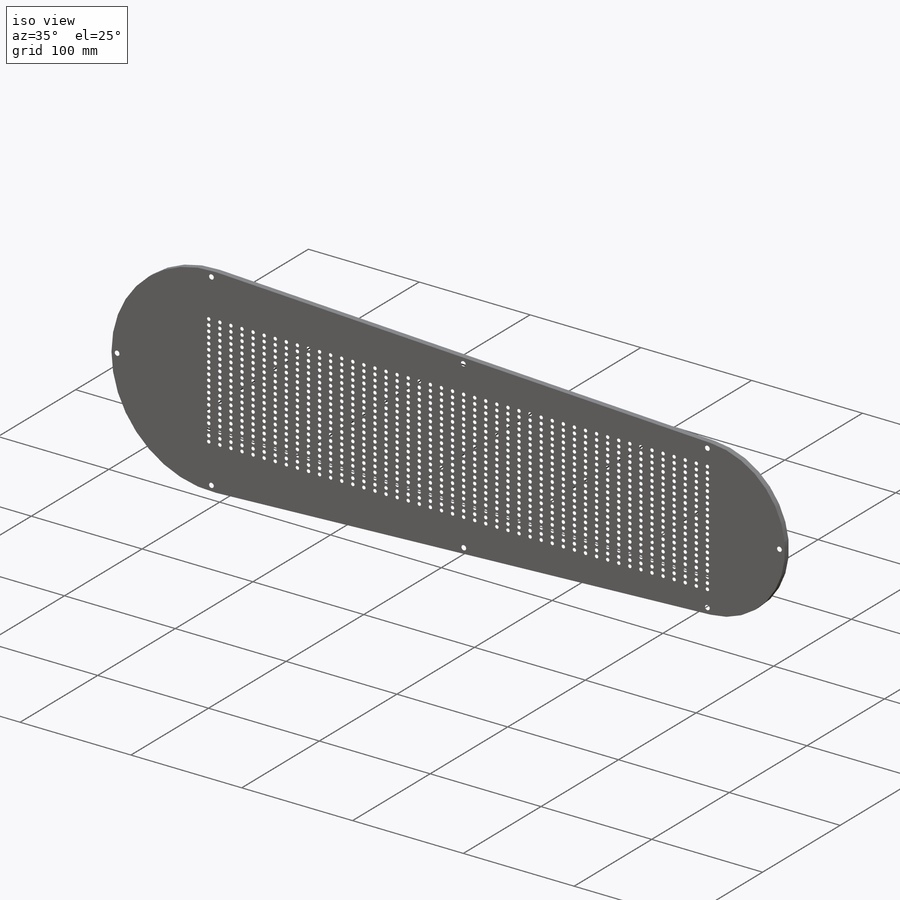
[diagram: iso view]
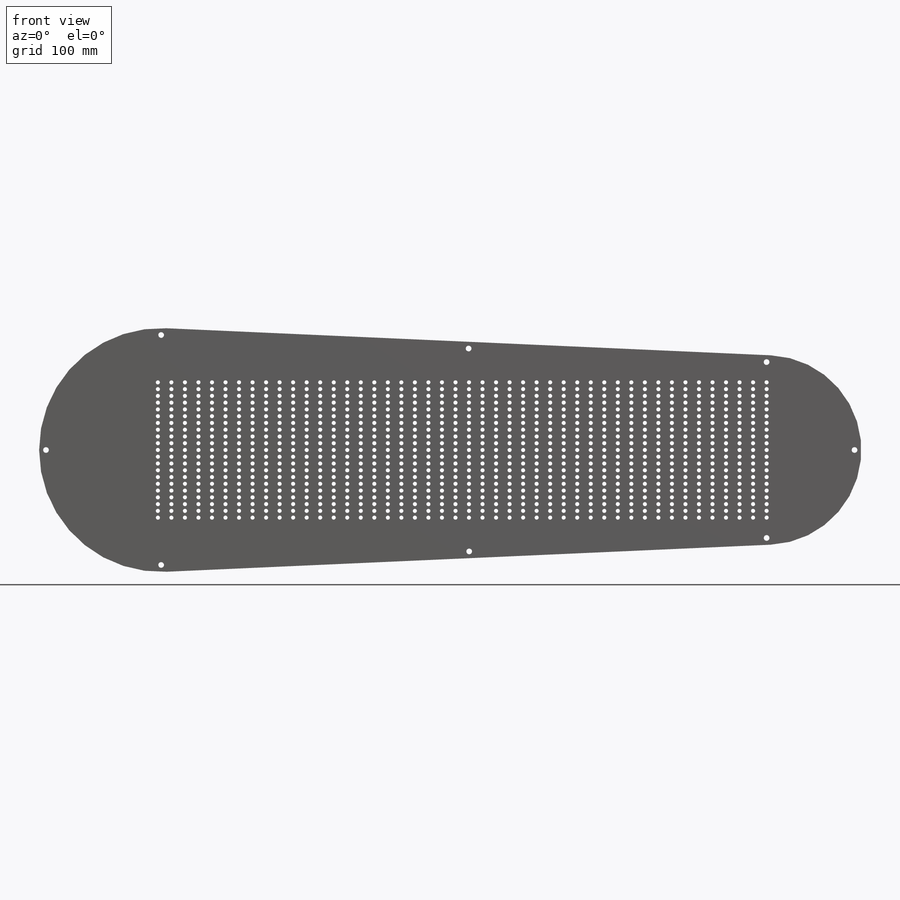
[diagram: front view]
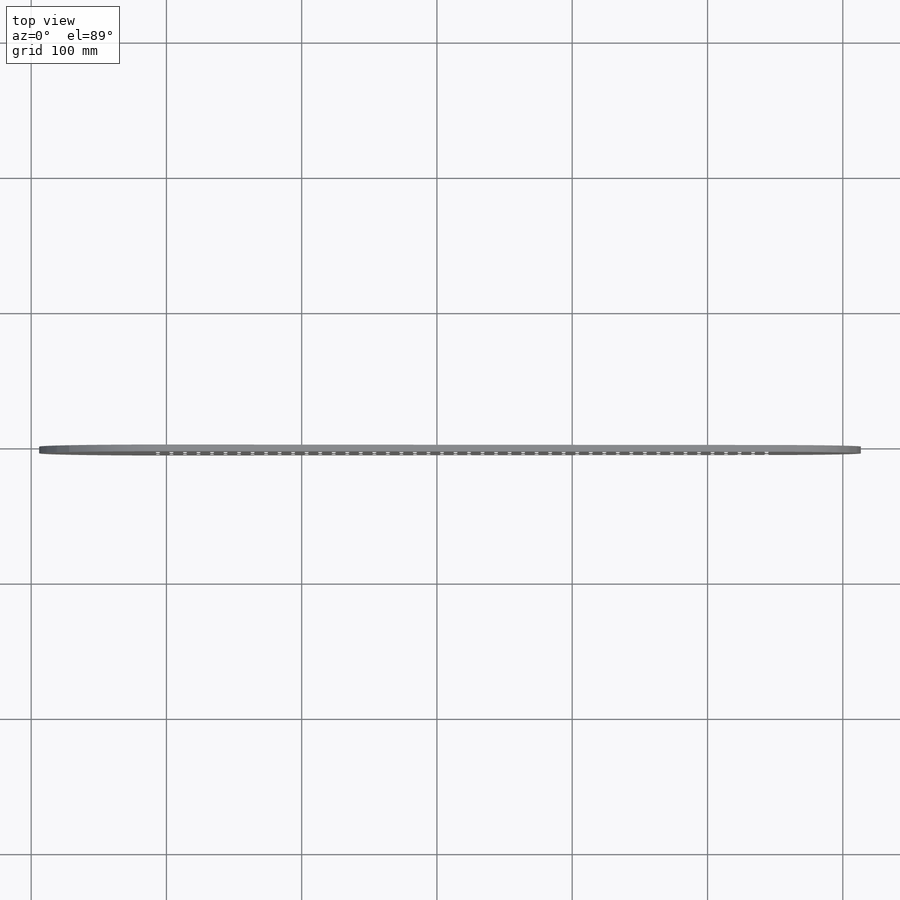
[diagram: top view]
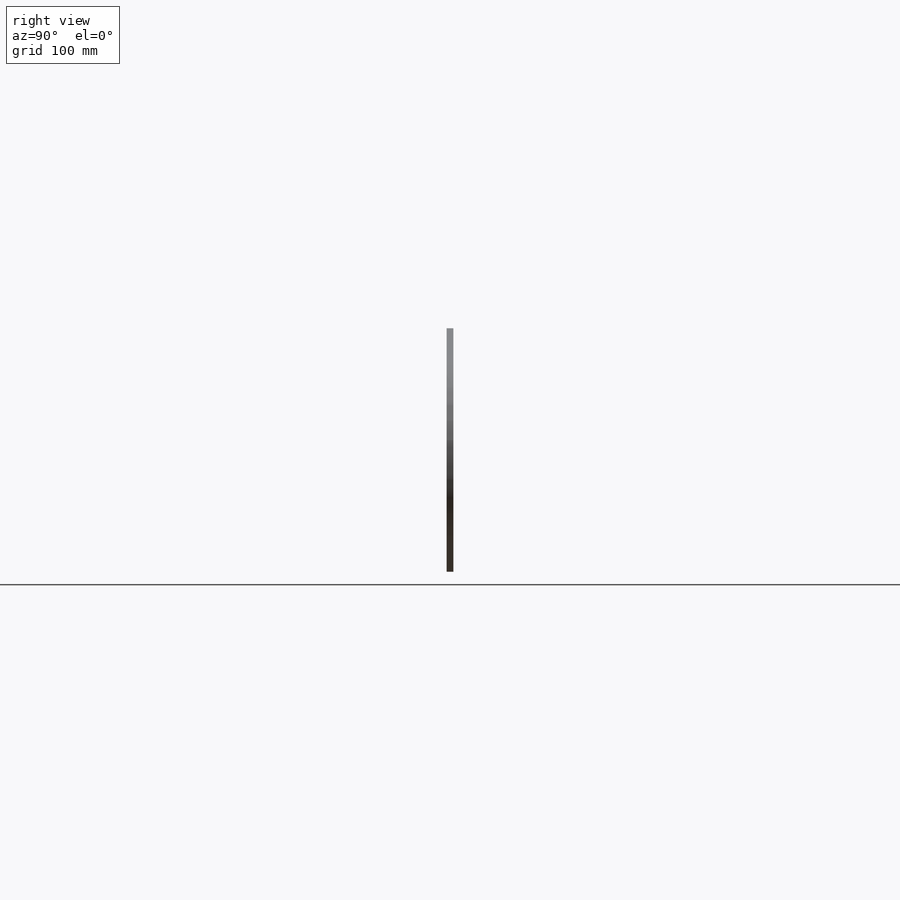
[diagram: right view]
SOLIDWORKS PART (.sldprt)
format: sldprt  version: not decoded by parser v0  size: 1,879,040 bytes
history: native  units: mm
features: thread x8, sketch x5, pattern_linear x2, material x1, extrude x1, hole x1, cut_extrude x1 (+16 scaffold rows collapsed)
feature tree (35):
  scaffold x16  (default folders/planes/origin — collapsed)
  material  "Material <not specified>"
  sketch  "Sketch1"  dims[D2=180.0mm D3=140.0mm D1=446.82mm]
  extrude  "Boss-Extrude1"  Depth=5mm
  hole  "M5 Tapped Hole1"  Diameter=4.2mm Depth=12.4mm
  sketch  "Sketch3"  dims[D1=85.0mm D2=85.0mm D3=85.0mm D4=65.0mm D5=65.0mm D6=65.0mm D7=5.0mm D8=5.0mm]
  sketch  "Sketch2"  dims[hole-wizard template sketch: 47 standard entries collapsed; hole parameters kept: c15.Tap Drill Depth=12.4mm c15.D3=~14.816244mm c15.Drill Angle=118.0deg]
  thread  "Hole Thread1"  Diameter=5mm  [1 undecoded]
  thread  "Hole Thread2"  Diameter=5mm  [1 undecoded]
  thread  "Hole Thread3"  Diameter=5mm  [1 undecoded]
  thread  "Hole Thread4"  Diameter=5mm  [1 undecoded]
  thread  "Hole Thread5"  Diameter=5mm  [1 undecoded]
  thread  "Hole Thread6"  Diameter=5mm  [1 undecoded]
  thread  "Hole Thread7"  Diameter=5mm  [1 undecoded]
  thread  "Hole Thread8"  Diameter=5mm  [1 undecoded]
  sketch  "Sketch4"  dims[c1.D1=3.0mm c1.D2=3.0mm c1.D3=3.0mm c1.D4=3.0mm c1.D5=3.0mm c1.D6=3.0mm c1.D13=3.0mm c1.D7=5.0mm c1.D8=5.0mm c1.D9=5.0mm c1.D10=5.0mm c1.D11=5.0mm c1.D12=15.0mm c2.D13=0.0mm]
  cut_extrude  "Cut-Extrude1"  Depth=10mm
  sketch  "Sketch6"
  pattern_linear  "LPattern3"  Count1=46 Count2=1 Spacing1=10mm Spacing2=40mm
  pattern_linear  "LPattern4"  Count1=4 Count2=1 Spacing1=25mm Spacing2=40mm
decode coverage: 17 of 18 modeling features carry decoded parameters
note: ~ marks probable driven/reference dimensions
note: 8 parameter values undecoded
note: suppression state not decoded; provenance and decode notes live in map.json
